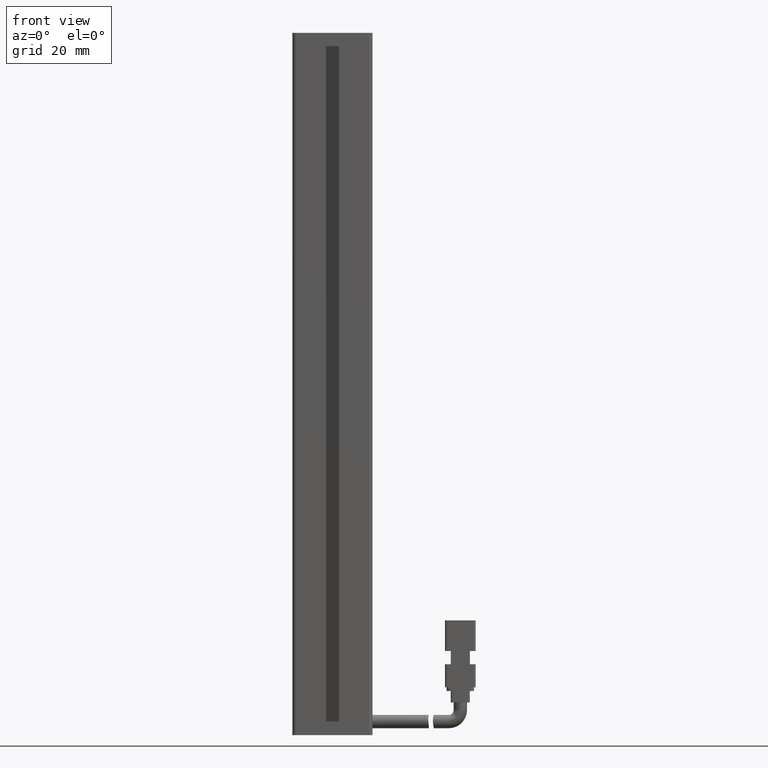
[diagram: clean part render]
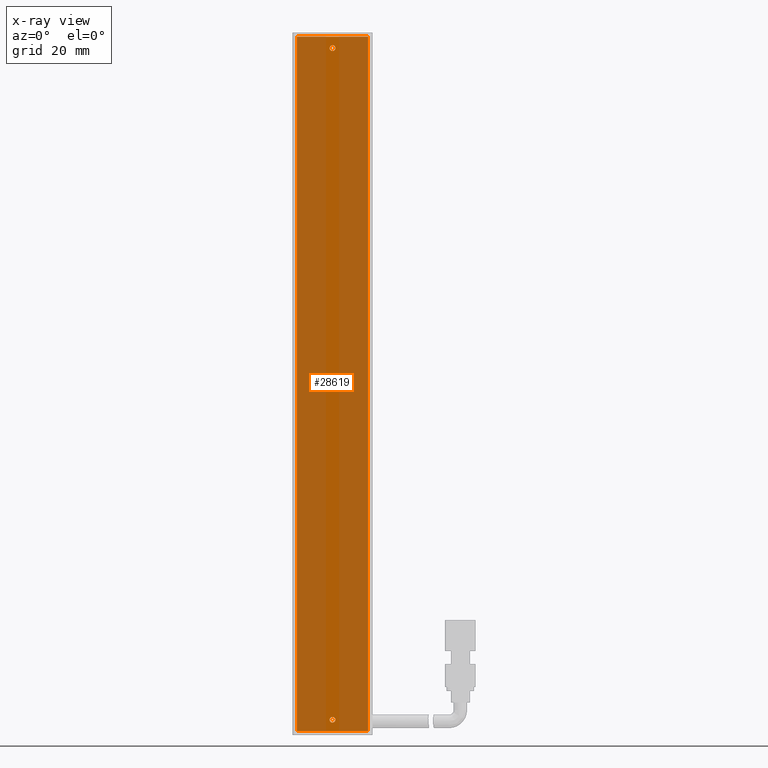
[diagram: x-ray — body ghosted, one internal face saturated and labeled with its STEP entity id]
A machine part, front view, then the same camera in x-ray: the body is ghosted and one INTERNAL B-rep face — a face not visible from any outside direction — is saturated and labeled: STEP entity #28619.
In plain terms, the highlighted planar face has unit normal (-0, 1, 0).
Its self-contained STEP definition (entity closure, byte-faithful):
#1405 = EDGE_LOOP ( 'NONE', ( #46459, #34542 ) ) ;
#1651 = CIRCLE ( 'NONE', #28664, 0.7500000000000006700 ) ;
#1722 = FACE_BOUND ( 'NONE', #1405, .T. ) ;
#1975 = CIRCLE ( 'NONE', #11005, 0.7500000000000006700 ) ;
#2994 = VERTEX_POINT ( 'NONE', #31227 ) ;
#3804 = VECTOR ( 'NONE', #8866, 1000.000000000000000 ) ;
#4281 = VERTEX_POINT ( 'NONE', #46305 ) ;
#5265 = FACE_OUTER_BOUND ( 'NONE', #28755, .T. ) ;
#7822 = CARTESIAN_POINT ( 'NONE',  ( 50.27537974683542600, 32.09073232304837100, -24.00000000000002100 ) ) ;
#7995 = AXIS2_PLACEMENT_3D ( 'NONE', #48040, #25793, #18459 ) ;
#8014 = LINE ( 'NONE', #42364, #25545 ) ;
#8679 = EDGE_CURVE ( 'NONE', #4281, #23671, #11165, .T. ) ;
#8864 = VERTEX_POINT ( 'NONE', #46495 ) ;
#8866 = DIRECTION ( 'NONE',  ( -1.548860246407863500E-017, -0.0000000000000000000, -1.000000000000000000 ) ) ;
#8933 = ORIENTED_EDGE ( 'NONE', *, *, #41100, .F. ) ;
#9521 = CARTESIAN_POINT ( 'NONE',  ( 50.27537974683542600, 32.09073232304837100, -24.00000000000002100 ) ) ;
#9752 = CARTESIAN_POINT ( 'NONE',  ( 40.92537974683541800, 32.09073232304837100, -27.00000000000002500 ) ) ;
#10379 = EDGE_CURVE ( 'NONE', #2994, #26302, #37197, .T. ) ;
#11005 = AXIS2_PLACEMENT_3D ( 'NONE', #9752, #28032, #31838 ) ;
#11165 = LINE ( 'NONE', #7822, #29258 ) ;
#12657 = EDGE_CURVE ( 'NONE', #26302, #2994, #24828, .T. ) ;
#12671 = CARTESIAN_POINT ( 'NONE',  ( 40.92537974683541800, 32.09073232304837100, -27.75000000000002500 ) ) ;
#14853 = ORIENTED_EDGE ( 'NONE', *, *, #30434, .F. ) ;
#15036 = CARTESIAN_POINT ( 'NONE',  ( 50.27537974683540500, 32.09073232304837100, -206.0000000000000300 ) ) ;
#16249 = DIRECTION ( 'NONE',  ( 1.548860246407863500E-017, 0.0000000000000000000, 1.000000000000000000 ) ) ;
#17346 = CARTESIAN_POINT ( 'NONE',  ( 40.92537974683541800, 32.09073232304837100, -27.00000000000002500 ) ) ;
#18336 = CARTESIAN_POINT ( 'NONE',  ( 31.57537974683540600, 32.09073232304837100, -24.00000000000002100 ) ) ;
#18459 = DIRECTION ( 'NONE',  ( 0.0000000000000000000, 0.0000000000000000000, 1.000000000000000000 ) ) ;
#19384 = VECTOR ( 'NONE', #22273, 1000.000000000000000 ) ;
#19957 = EDGE_LOOP ( 'NONE', ( #34350, #8933 ) ) ;
#20053 = EDGE_CURVE ( 'NONE', #36944, #27640, #1975, .T. ) ;
#21029 = ORIENTED_EDGE ( 'NONE', *, *, #26697, .F. ) ;
#22273 = DIRECTION ( 'NONE',  ( 1.548860246407863500E-017, 0.0000000000000000000, 1.000000000000000000 ) ) ;
#22550 = DIRECTION ( 'NONE',  ( 1.000000000000000000, 0.0000000000000000000, -1.548860246407863500E-017 ) ) ;
#22851 = FACE_BOUND ( 'NONE', #19957, .T. ) ;
#23147 = EDGE_CURVE ( 'NONE', #45660, #8864, #8014, .T. ) ;
#23671 = VERTEX_POINT ( 'NONE', #38669 ) ;
#24044 = AXIS2_PLACEMENT_3D ( 'NONE', #30667, #38596, #16249 ) ;
#24669 = DIRECTION ( 'NONE',  ( -0.0000000000000000000, -1.000000000000000000, -0.0000000000000000000 ) ) ;
#24828 = CIRCLE ( 'NONE', #7995, 0.7500000000000006700 ) ;
#25462 = ORIENTED_EDGE ( 'NONE', *, *, #23147, .F. ) ;
#25545 = VECTOR ( 'NONE', #31171, 1000.000000000000000 ) ;
#25793 = DIRECTION ( 'NONE',  ( -0.0000000000000000000, -1.000000000000000000, -0.0000000000000000000 ) ) ;
#26048 = LINE ( 'NONE', #9521, #3804 ) ;
#26302 = VERTEX_POINT ( 'NONE', #35902 ) ;
#26697 = EDGE_CURVE ( 'NONE', #23671, #45660, #26048, .T. ) ;
#27640 = VERTEX_POINT ( 'NONE', #12671 ) ;
#28032 = DIRECTION ( 'NONE',  ( -0.0000000000000000000, -1.000000000000000000, -0.0000000000000000000 ) ) ;
#28461 = DIRECTION ( 'NONE',  ( 0.0000000000000000000, 0.0000000000000000000, 1.000000000000000000 ) ) ;
#28619 = ADVANCED_FACE ( 'NONE', ( #5265, #22851, #1722 ), #34907, .F. ) ;
#28664 = AXIS2_PLACEMENT_3D ( 'NONE', #17346, #24669, #28461 ) ;
#28755 = EDGE_LOOP ( 'NONE', ( #14853, #25462, #21029, #37879 ) ) ;
#29258 = VECTOR ( 'NONE', #22550, 1000.000000000000000 ) ;
#30434 = EDGE_CURVE ( 'NONE', #8864, #4281, #32888, .T. ) ;
#30634 = AXIS2_PLACEMENT_3D ( 'NONE', #43066, #31398, #42591 ) ;
#30667 = CARTESIAN_POINT ( 'NONE',  ( 50.27537974683542600, 32.09073232304837100, -24.00000000000002100 ) ) ;
#31171 = DIRECTION ( 'NONE',  ( -1.000000000000000000, -0.0000000000000000000, 1.548860246407863500E-017 ) ) ;
#31227 = CARTESIAN_POINT ( 'NONE',  ( 40.92537974683540400, 32.09073232304837100, -203.7500000000000300 ) ) ;
#31398 = DIRECTION ( 'NONE',  ( -0.0000000000000000000, -1.000000000000000000, -0.0000000000000000000 ) ) ;
#31838 = DIRECTION ( 'NONE',  ( 0.0000000000000000000, 0.0000000000000000000, 1.000000000000000000 ) ) ;
#32888 = LINE ( 'NONE', #18336, #19384 ) ;
#34350 = ORIENTED_EDGE ( 'NONE', *, *, #20053, .F. ) ;
#34542 = ORIENTED_EDGE ( 'NONE', *, *, #10379, .F. ) ;
#34888 = CARTESIAN_POINT ( 'NONE',  ( 40.92537974683541800, 32.09073232304837100, -26.25000000000002500 ) ) ;
#34907 = PLANE ( 'NONE',  #24044 ) ;
#35902 = CARTESIAN_POINT ( 'NONE',  ( 40.92537974683540400, 32.09073232304837100, -202.2500000000000000 ) ) ;
#36944 = VERTEX_POINT ( 'NONE', #34888 ) ;
#37197 = CIRCLE ( 'NONE', #30634, 0.7500000000000006700 ) ;
#37879 = ORIENTED_EDGE ( 'NONE', *, *, #8679, .F. ) ;
#38596 = DIRECTION ( 'NONE',  ( -0.0000000000000000000, 1.000000000000000000, 0.0000000000000000000 ) ) ;
#38669 = CARTESIAN_POINT ( 'NONE',  ( 50.27537974683542600, 32.09073232304837100, -24.00000000000002100 ) ) ;
#41100 = EDGE_CURVE ( 'NONE', #27640, #36944, #1651, .T. ) ;
#42364 = CARTESIAN_POINT ( 'NONE',  ( 50.27537974683541900, 32.09073232304837100, -206.0000000000000300 ) ) ;
#42591 = DIRECTION ( 'NONE',  ( 0.0000000000000000000, 0.0000000000000000000, 1.000000000000000000 ) ) ;
#43066 = CARTESIAN_POINT ( 'NONE',  ( 40.92537974683540400, 32.09073232304837100, -203.0000000000000000 ) ) ;
#45660 = VERTEX_POINT ( 'NONE', #15036 ) ;
#46305 = CARTESIAN_POINT ( 'NONE',  ( 31.57537974683542000, 32.09073232304837100, -24.00000000000002100 ) ) ;
#46459 = ORIENTED_EDGE ( 'NONE', *, *, #12657, .F. ) ;
#46495 = CARTESIAN_POINT ( 'NONE',  ( 31.57537974683539900, 32.09073232304837100, -206.0000000000000300 ) ) ;
#48040 = CARTESIAN_POINT ( 'NONE',  ( 40.92537974683540400, 32.09073232304837100, -203.0000000000000000 ) ) ;